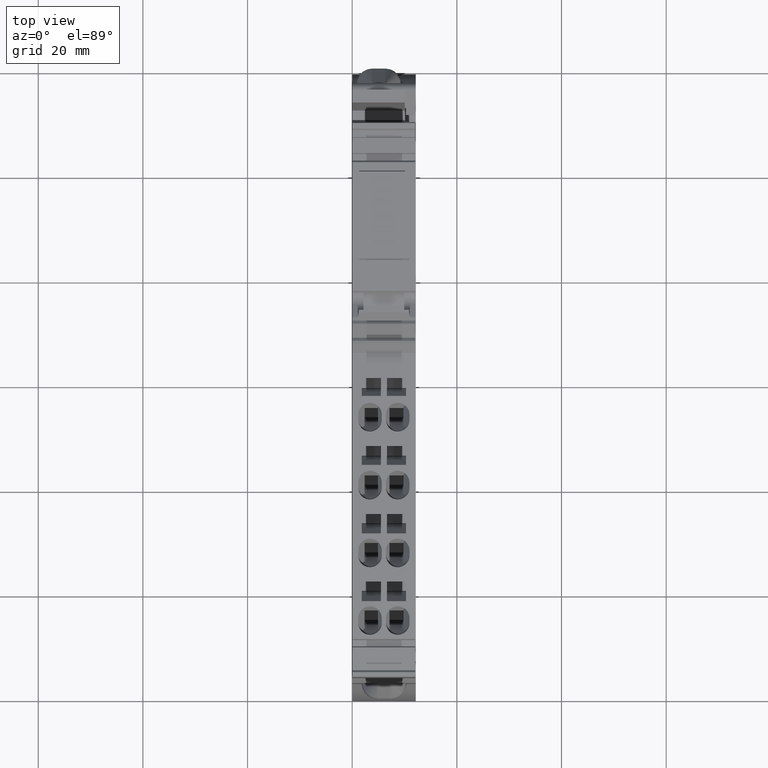
[diagram: clean part render]
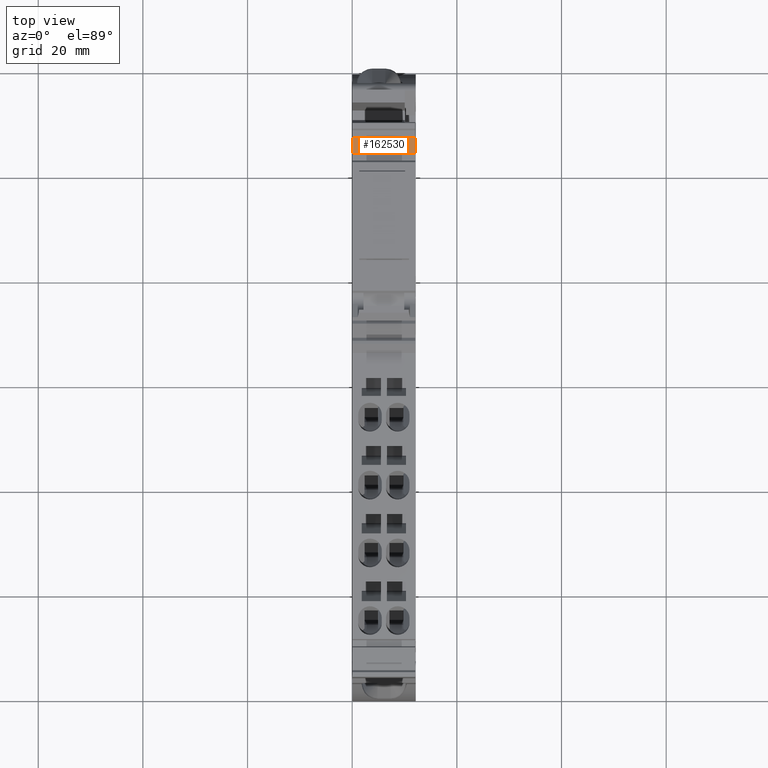
[diagram: same view with one face highlighted and labeled with its STEP entity id]
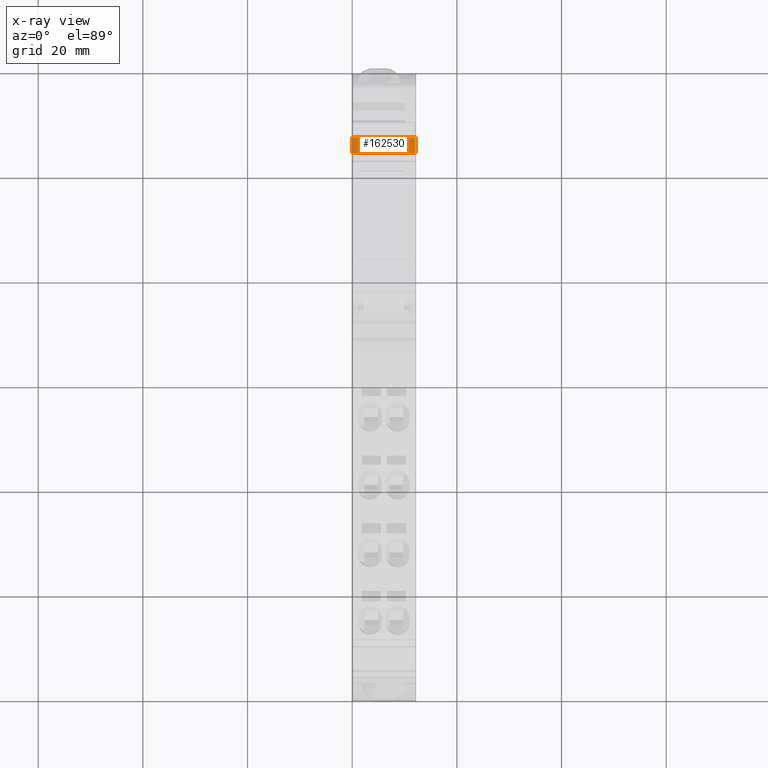
[diagram: x-ray of the same camera — body ghosted, the highlighted face saturated]
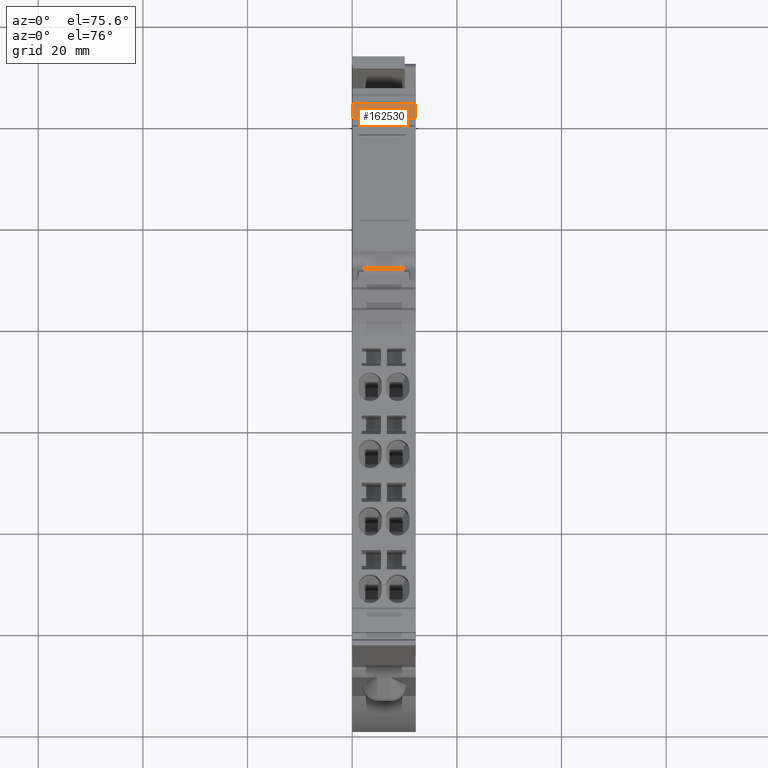
[diagram: same view with one face highlighted and labeled with its STEP entity id]
A machine part, top view. The second image highlights one B-rep face of the part: STEP entity #162530.
The next image is the same camera in x-ray: the body ghosted, the highlighted face saturated — about 0% of this face is hidden behind the body in this view.
A second angle (auxiliary view) of the same face is appended — the face is thin or edge-on in the first view.
In plain terms, the highlighted planar face has unit normal (-0, -0, -1).
Its self-contained STEP definition (entity closure, byte-faithful):
#770=CARTESIAN_POINT('',(112.976285095723,83.6366197234249,-35.425));
#780=VERTEX_POINT('',#770);
#810=CARTESIAN_POINT('',(70.5588949628286,83.6366197234257,-35.425));
#820=DIRECTION('',(1.,-1.86795023893183E-14,1.14423563262215E-17));
#830=VECTOR('',#820,1.);
#840=LINE('',#810,#830);
#850=CARTESIAN_POINT('',(115.976285095723,83.6366197234249,-35.425));
#860=VERTEX_POINT('',#850);
#870=EDGE_CURVE('',#780,#860,#840,.T.);
#8500=CARTESIAN_POINT('',(115.976285095723,83.6366197234249,-47.425));
#8510=VERTEX_POINT('',#8500);
#8540=CARTESIAN_POINT('',(70.5588949628286,83.6366197234257,-47.425));
#8550=DIRECTION('',(1.,-1.86795023893183E-14,1.14423563262215E-17));
#8560=VECTOR('',#8550,1.);
#8570=LINE('',#8540,#8560);
#8580=CARTESIAN_POINT('',(112.976285095723,83.6366197234249,-47.425));
#8590=VERTEX_POINT('',#8580);
#8600=EDGE_CURVE('',#8590,#8510,#8570,.T.);
#11620=CARTESIAN_POINT('',(112.976285095723,83.6366197234249,0.));
#11630=DIRECTION('',(8.85927774418129E-33,6.86841404691548E-49,-1.));
#11640=VECTOR('',#11630,1.);
#11650=LINE('',#11620,#11640);
#11660=EDGE_CURVE('',#780,#8590,#11650,.T.);
#11850=CARTESIAN_POINT('',(115.976285095723,83.6366197234248,0.));
#11860=DIRECTION('',(8.85927774418128E-33,6.86841404691525E-49,-1.));
#11870=VECTOR('',#11860,1.);
#11880=LINE('',#11850,#11870);
#11890=EDGE_CURVE('',#860,#8510,#11880,.T.);
#162420=CARTESIAN_POINT('',(115.884651978321,83.6366197234248,
-48.6250024));
#162430=DIRECTION('',(-1.86795023893183E-14,-1.,-1.65486899790068E-46));
#162440=DIRECTION('',(-1.,1.86795023893183E-14,8.85927774418128E-33));
#162450=AXIS2_PLACEMENT_3D('',#162420,#162430,#162440);
#162460=PLANE('',#162450);
#162470=ORIENTED_EDGE('',*,*,#11890,.T.);
#162480=ORIENTED_EDGE('',*,*,#870,.T.);
#162490=ORIENTED_EDGE('',*,*,#11660,.F.);
#162500=ORIENTED_EDGE('',*,*,#8600,.F.);
#162510=EDGE_LOOP('',(#162500,#162490,#162480,#162470));
#162520=FACE_OUTER_BOUND('',#162510,.T.);
#162530=ADVANCED_FACE('',(#162520),#162460,.F.);